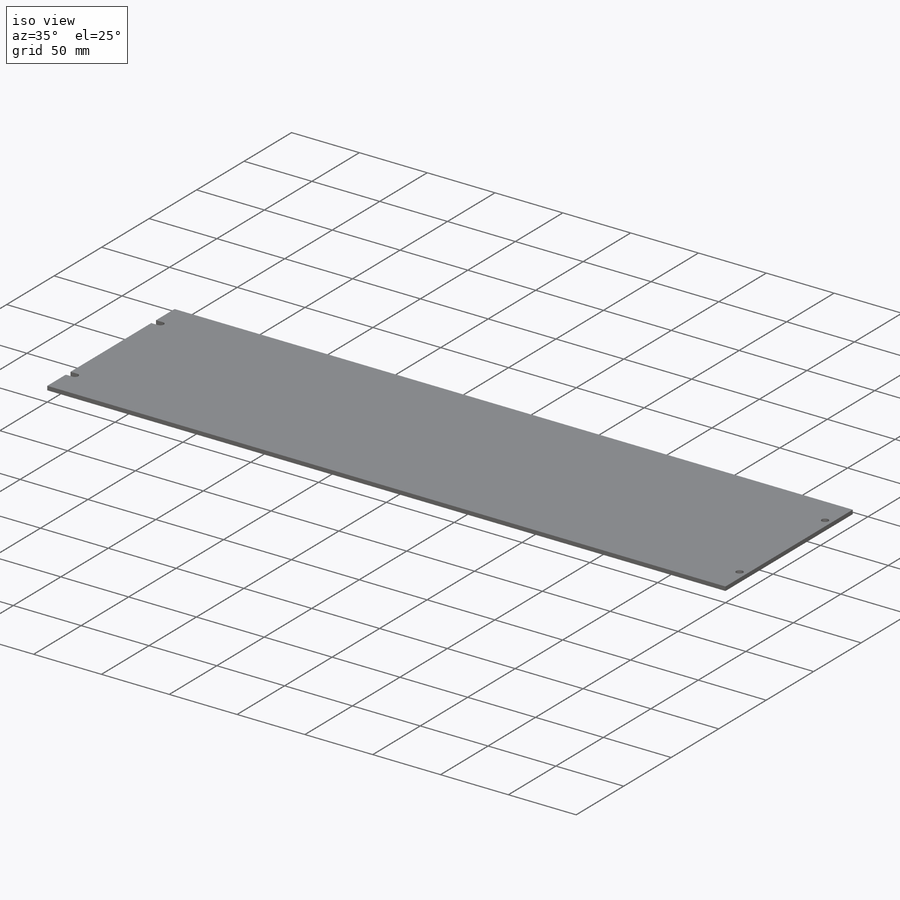
[diagram: iso view]
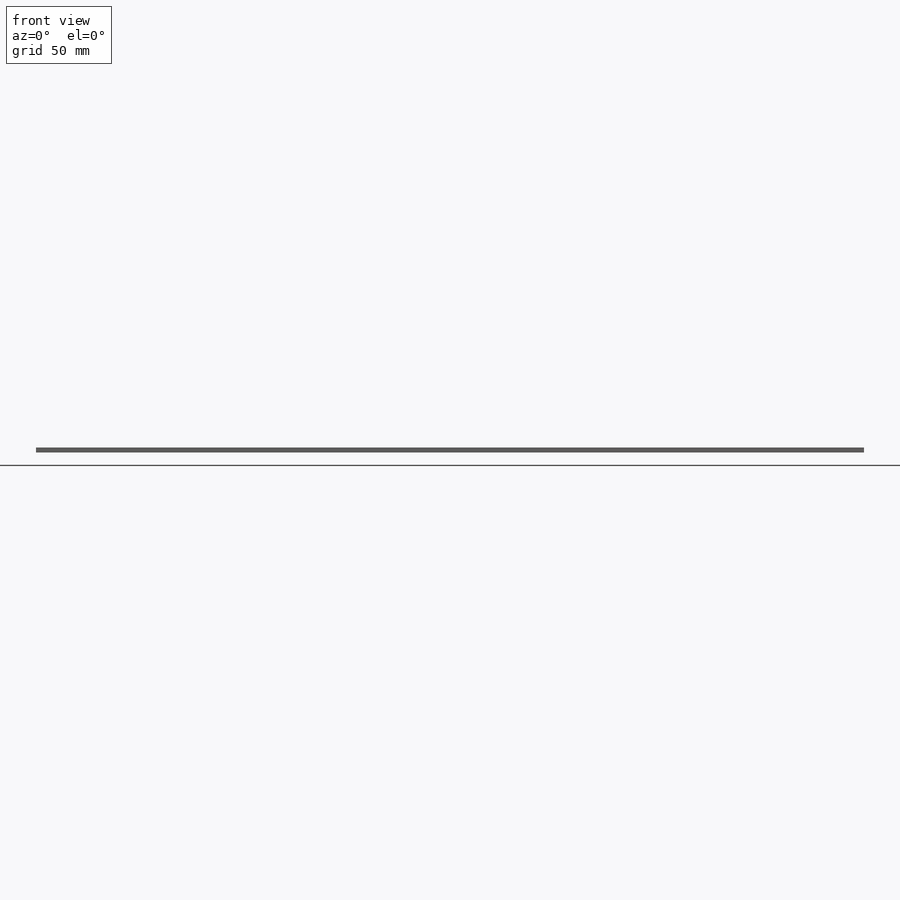
[diagram: front view]
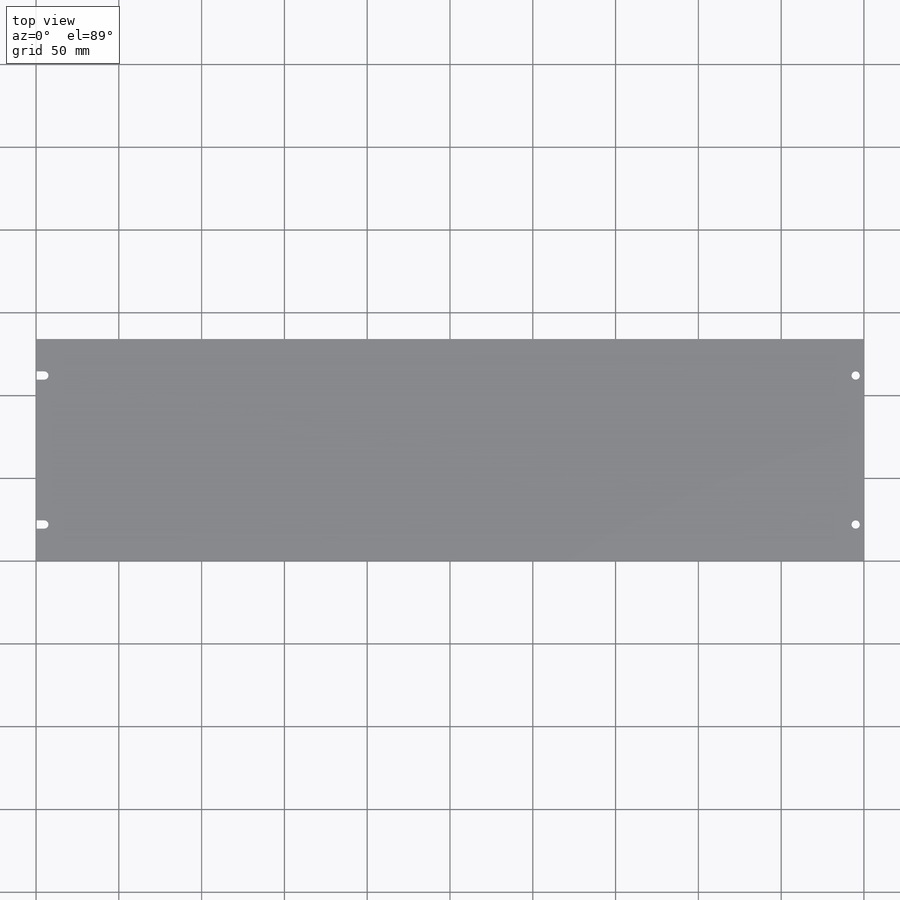
[diagram: top view]
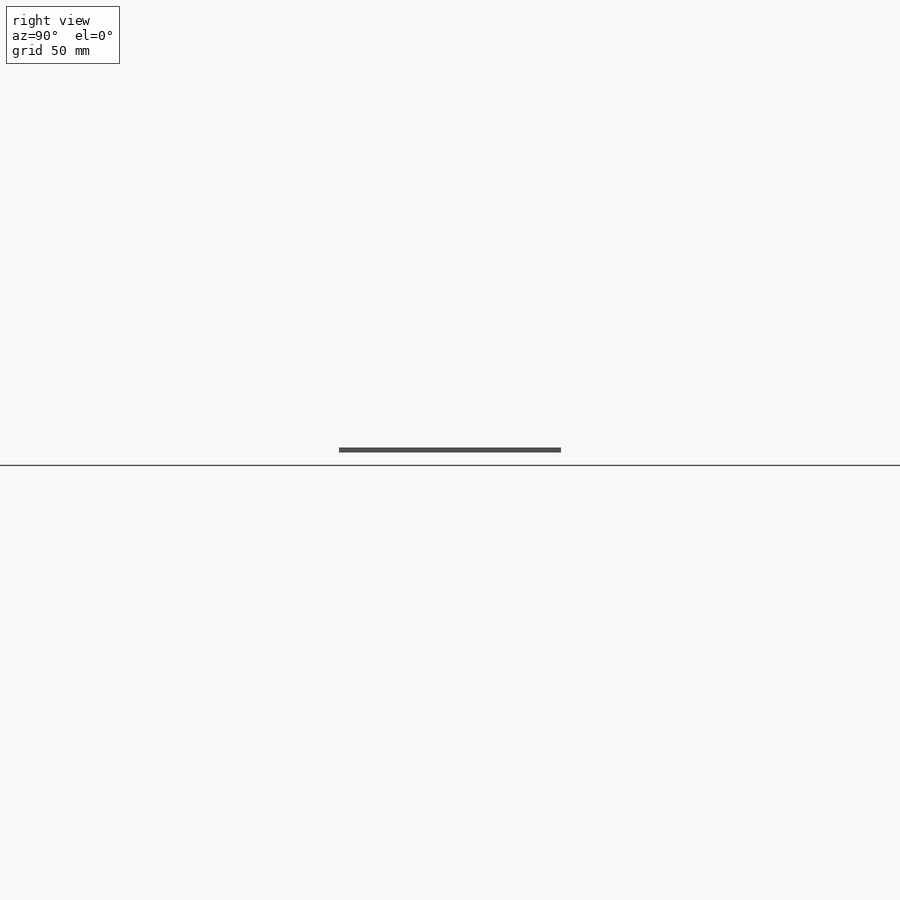
[diagram: right view]
SOLIDWORKS PART (.sldprt)
format: sldprt  version: not decoded by parser v0  size: 206,848 bytes
history: native  units: mm
features: sketch x4, plane x3, material x1, extrude x1, cut_extrude x1, hole x1 (+13 scaffold rows collapsed)
feature tree (24):
  scaffold x13  (default folders/planes/origin — collapsed)
  material  "Материал <не указан>"
  plane  "Спереди"
  plane  "Сверху"
  plane  "Справа"
  sketch  "Эскиз2"  dims[D1=500.0mm D2=134.0mm]
  extrude  "Бобышка-Вытянуть1"  Depth=3mm
  sketch  "Эскиз3"  dims[c1.D1=5.0mm c1.D3=5.0mm c1.D4=5.0mm c1.D2=490.0mm c2.D3=5.0mm c2.D4=90.0mm c2.D5=22.0mm]
  cut_extrude  "Вырез-Вытянуть1"  [1 undecoded]
  hole  "Зенковка для винта с потайной головкой M41"  [1 undecoded]
  sketch  "Эскиз5"  dims[D1=138.0mm D2=138.0mm D3=138.0mm D4=138.0mm D5=138.0mm D6=138.0mm D7=17.0mm D8=8.0mm D9=63.0mm D10=118.0mm D11=63.0mm D12=39.0mm D13=8.0mm D14=17.0mm]
  sketch  "Эскиз4"  dims[hole-wizard template sketch: 46 standard entries collapsed; hole parameters kept: c15.Диаметр сквозного отверстия=4.5mm c15.Глубина сквозного отверстия=3.0mm c15.Диаметр передней зенковки=7.4mm c15.D4=~3.666174mm c15.Угол передней зенковки=90.0deg c15.Диаметр задней зенковки=4.8mm c15.D6=~9.919017mm c15.Угол задней зенковки=90.0deg]
decode coverage: 5 of 7 modeling features carry decoded parameters
note: ~ marks probable driven/reference dimensions
note: 2 parameter values undecoded
note: suppression state not decoded; provenance and decode notes live in map.json
